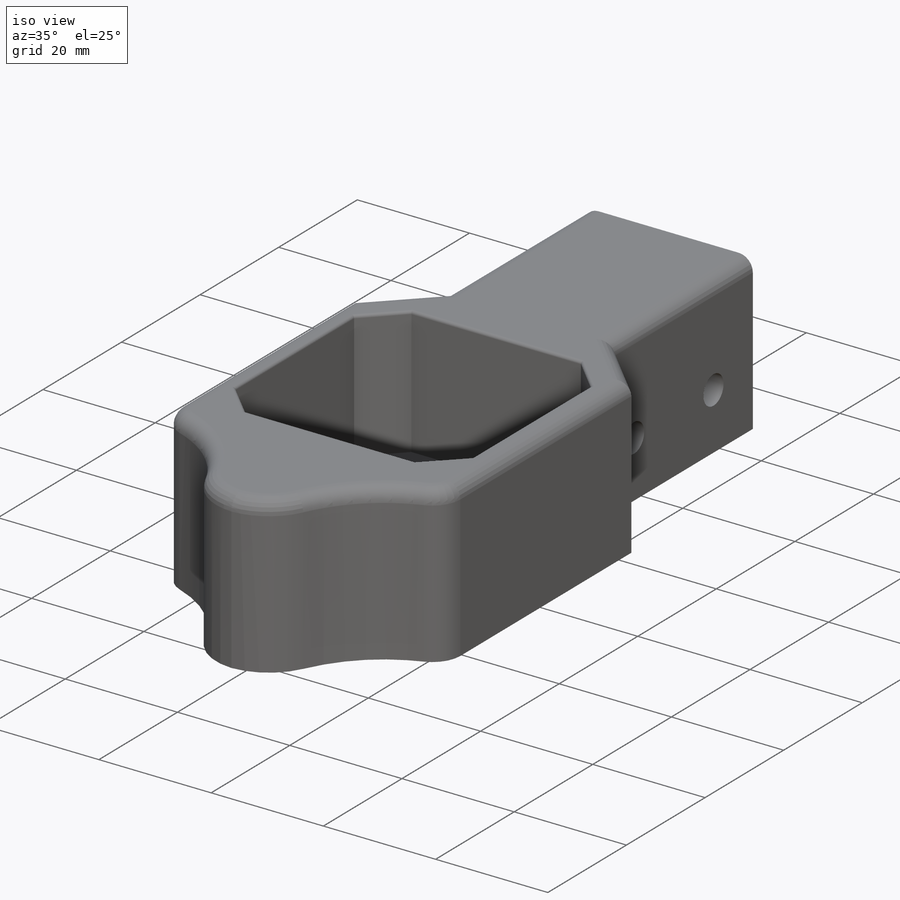
[diagram: iso view]
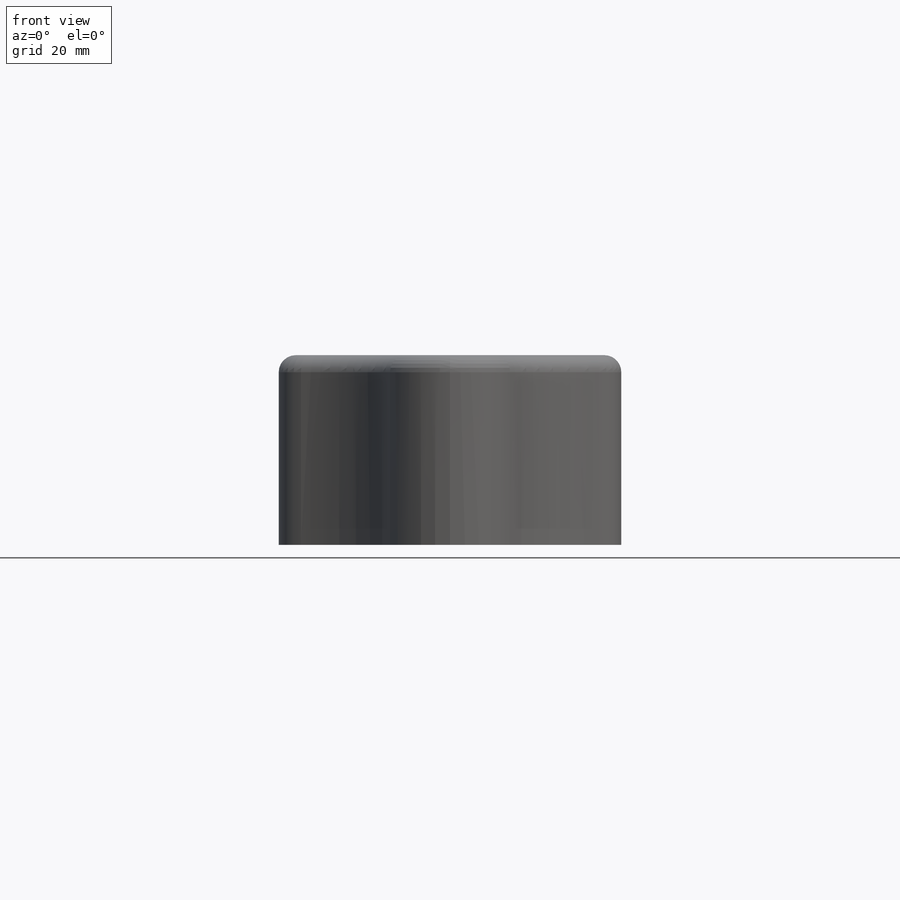
[diagram: front view]
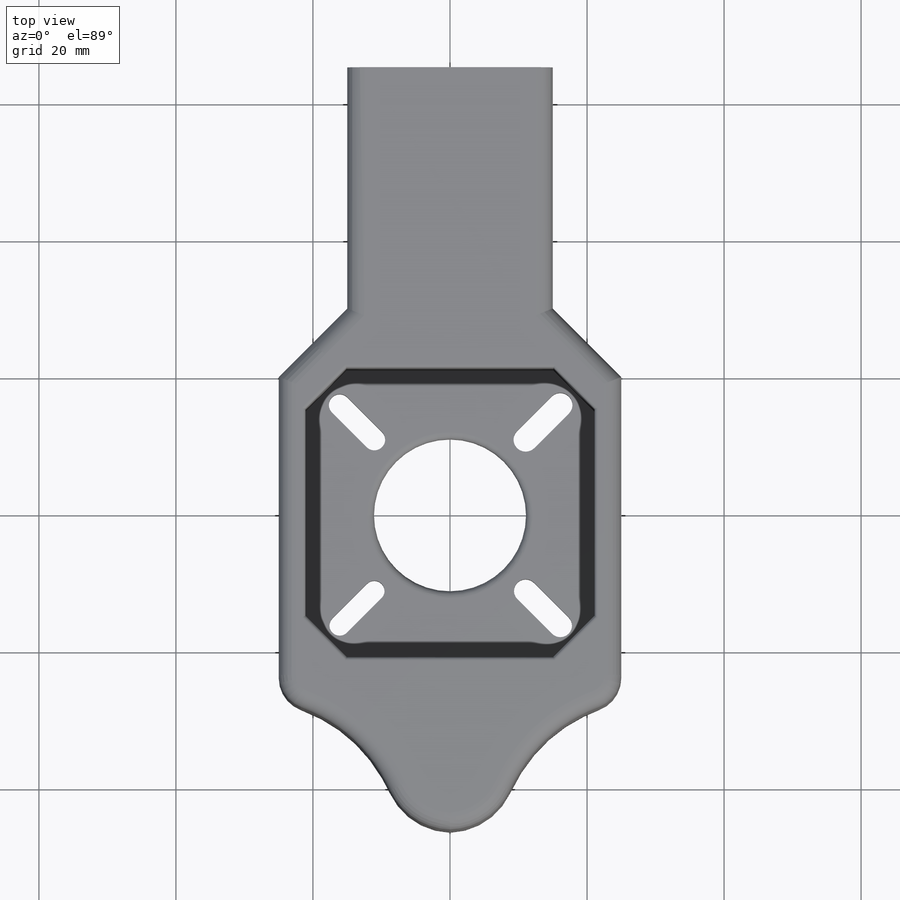
[diagram: top view]
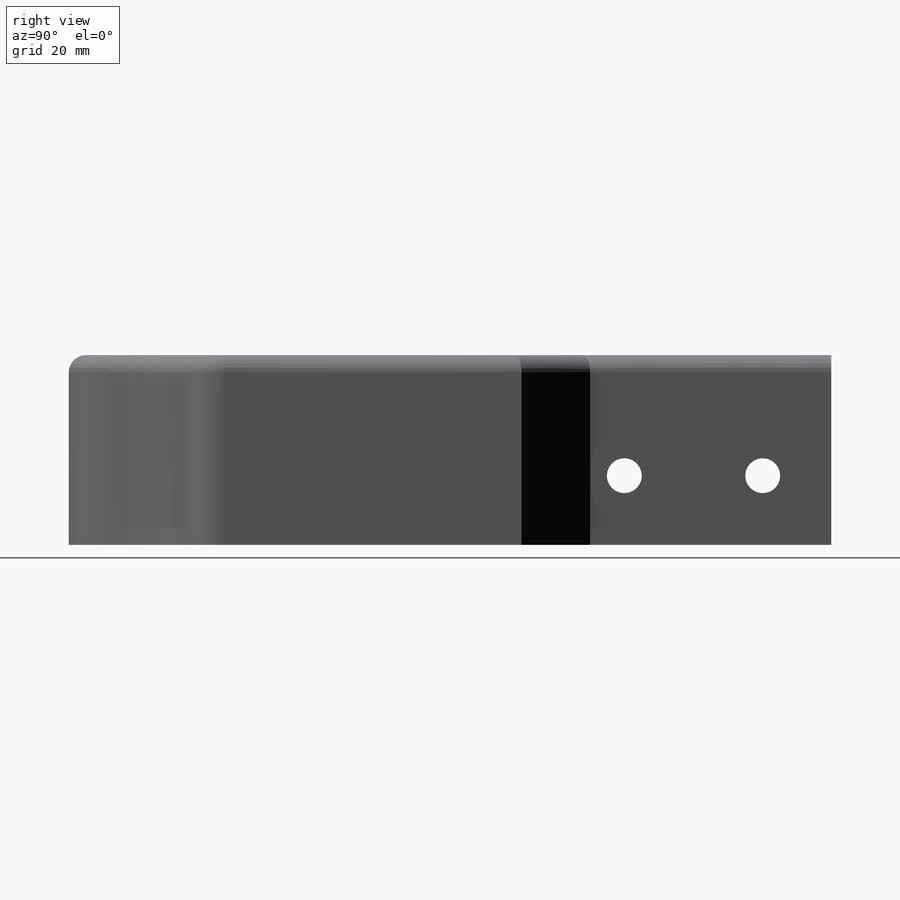
[diagram: right view]
SOLIDWORKS PART (.sldprt)
format: sldprt  version: not decoded by parser v0  size: 652,288 bytes
history: native  units: mm
features: sketch x15, cut_extrude x14, fillet x5, chamfer x4, material x1, extrude x1 (+13 scaffold rows collapsed)
feature tree (53):
  scaffold x13  (default folders/planes/origin — collapsed)
  material  "Material <not specified>"
  sketch  "Sketch1"  dims[D1=50.0mm D2=130.0mm]
  extrude  "Boss-Extrude1"  Depth=40mm
  sketch  "Sketch2"  dims[D1=42.2mm D2=42.2mm]
  cut_extrude  "Cut-Extrude1"  Depth=35mm
  sketch  "Sketch6"  dims[D1=40.2mm D2=~20.593631mm D3=40.2mm]
  cut_extrude  "Cut-Extrude5"  Depth=20.2mm
  sketch  "Sketch7"  dims[D1=20.2mm D2=40.2mm]
  cut_extrude  "Cut-Extrude6"  Depth=10mm
  sketch  "Sketch8"  dims[D1=20.2mm D2=40.2mm]
  cut_extrude  "Cut-Extrude7"  Depth=10mm
  sketch  "Sketch9"  dims[D2=5.1mm D3=5.1mm D1=10.0mm]
  cut_extrude  "Cut-Extrude8"  [1 undecoded]
  sketch  "Sketch10"  dims[D1=7.5mm]
  cut_extrude  "Cut-Extrude9"  [1 undecoded]
  sketch  "Sketch11"  dims[D2=10.1mm D1=30.0mm]
  cut_extrude  "Cut-Extrude10"  Depth=10mm
  chamfer  "Chamfer1"  Distance=10mm Angle=45deg
  sketch  "Sketch12"  dims[D1=22.2mm]
  cut_extrude  "Cut-Extrude11"  [1 undecoded]
  chamfer  "Chamfer2"  Distance=6mm Angle=45deg
  sketch  "Sketch13"  dims[c1.D5=3.3mm c1.D6=3.3mm c1.D7=3.3mm c1.D8=3.3mm c1.D1=4.75mm c1.D2=4.75mm c1.D3=2.75mm c1.D4=4.75mm c2.D3=5.0mm c2.D9=5.0mm c2.D10=5.0mm c2.D11=~3.561738mm c2.D4=5.0mm c3.D11=5.0mm c3.D12=~3.561738mm c3.D2=5.0mm c4.D12=5.0mm c4.D13=5.0mm c4.D14=32.2mm c4.D2=32.2mm]
  cut_extrude  "Cut-Extrude12"  [1 undecoded]
  sketch  "Sketch14"
  cut_extrude  "Cut-Extrude14"  [1 undecoded]
  chamfer  "Chamfer3"  Distance=10mm Angle=45deg
  sketch  "Sketch15"
  cut_extrude  "Cut-Extrude15"  Depth=10mm
  sketch  "Sketch16"
  cut_extrude  "Cut-Extrude16"  Depth=10mm
  sketch  "Sketch17"
  cut_extrude  "Cut-Extrude17"  [1 undecoded]
  chamfer  "Chamfer4"  Distance=5mm Angle=45deg
  sketch  "Sketch18"
  cut_extrude  "Cut-Extrude18"  [1 undecoded]
  fillet  "Fillet1"  Radius=10mm
  fillet  "Fillet2"  Radius=5mm
  fillet  "Fillet3"  Radius=2.5mm
  fillet  "Fillet4"  Radius=1mm
  fillet  "Fillet5"  Radius=0.5mm
decode coverage: 27 of 39 modeling features carry decoded parameters
note: ~ marks probable driven/reference dimensions
note: 7 parameter values undecoded
summary: no parameter record found for 7 features
note: suppression state not decoded; provenance and decode notes live in map.json
